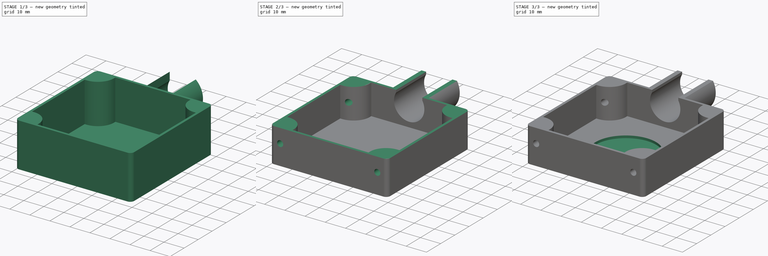
[diagram: build sequence overview — one tinted view per stage of 3, left to right]
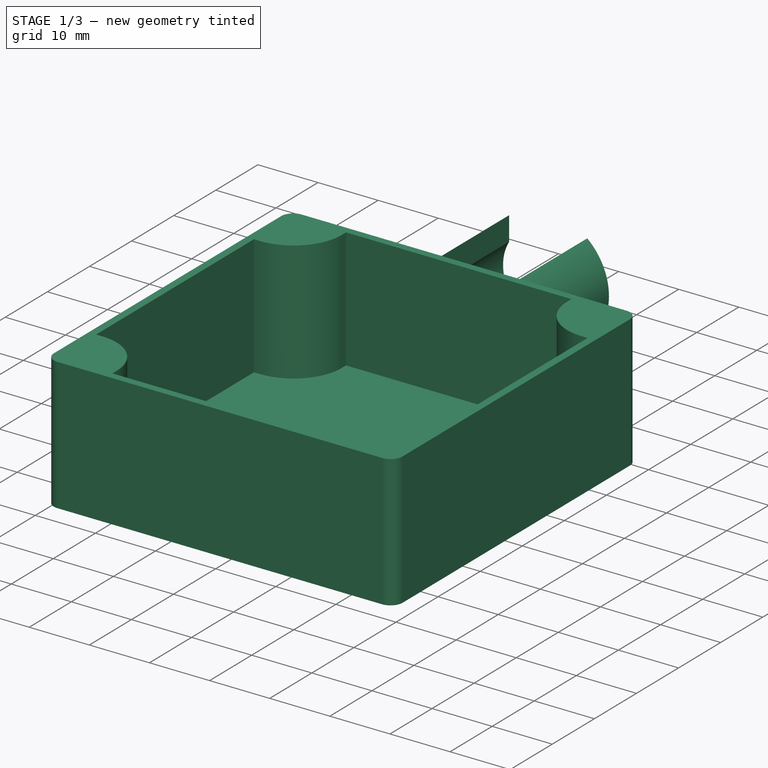
[diagram: stage 1 of 3 — iso view after this stage's code; geometry added in this stage tinted green]
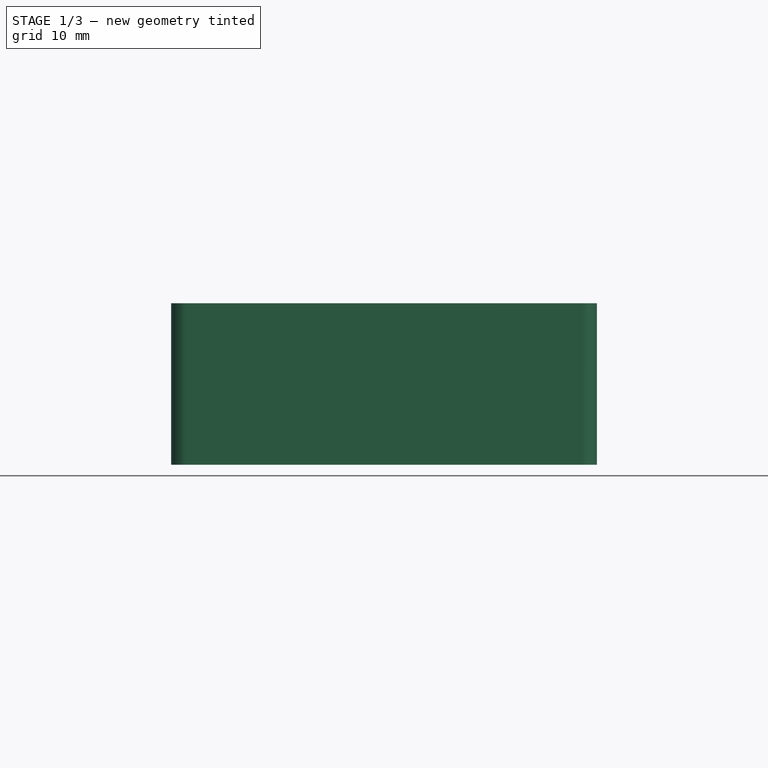
[diagram: stage 1 of 3 — front view after this stage's code; geometry added in this stage tinted green]
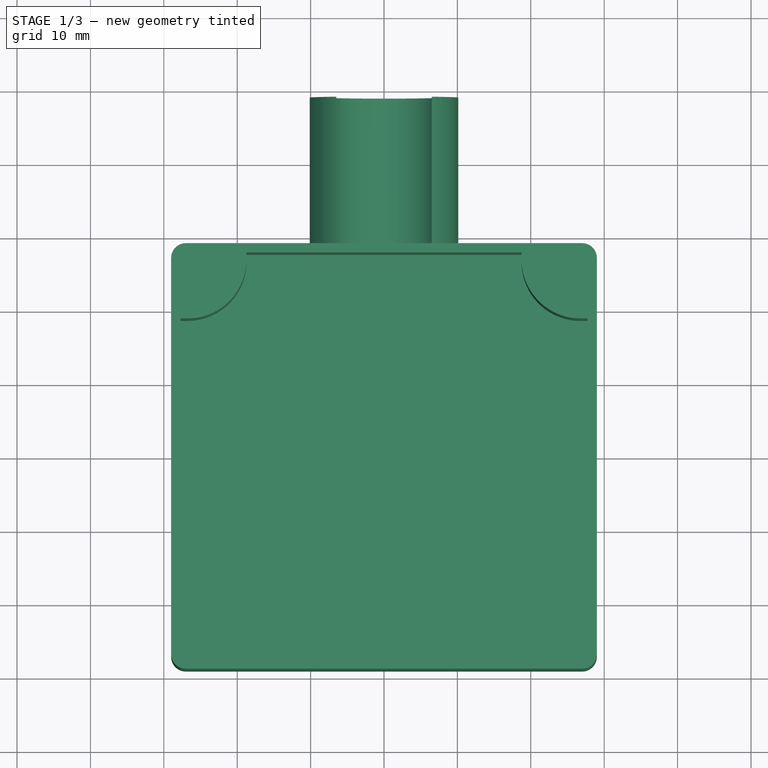
[diagram: stage 1 of 3 — top view after this stage's code; geometry added in this stage tinted green]
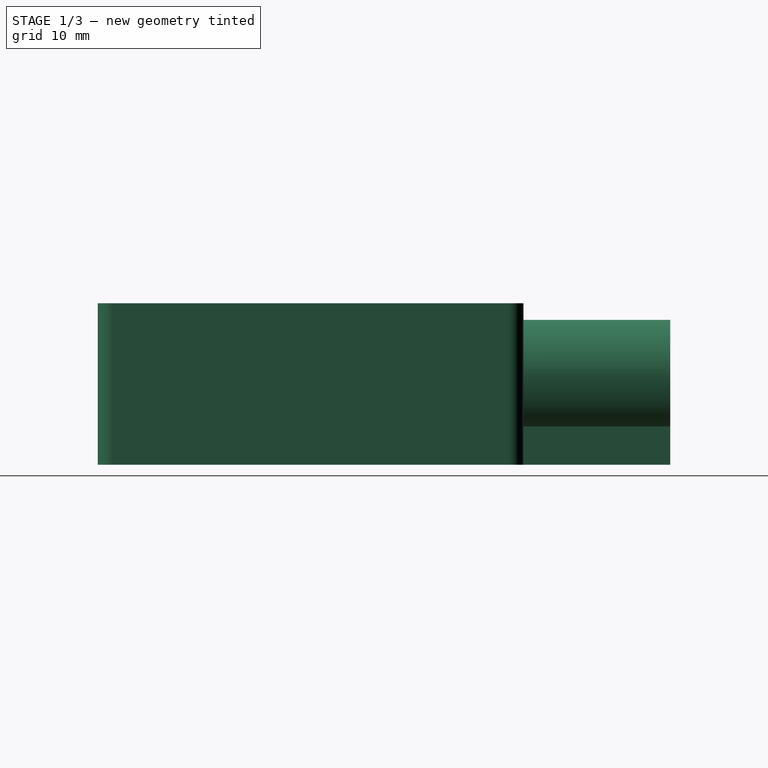
[diagram: stage 1 of 3 — right view after this stage's code; geometry added in this stage tinted green]
FCSTD DOCUMENT  (FreeCAD 0.19R23141 (Git))
Label: cnc_stepper_cap
License: All rights reserved
LicenseURL: http://en.wikipedia.org/wiki/All_rights_reserved
objects: Sketcher::SketchObject×7, PartDesign::Pocket×5, PartDesign::Pad×2, PartDesign::Chamfer×1, PartDesign::Body×1
note: 24 computed .brp shape members not serialized (recipe doc carries the construction recipe); baked Part::Feature solids carry a one-line shape summary decoded from their .brp

FEATURE [Sketcher::SketchObject] Sketch
  MapMode = 5
  Support = -> [XY_Plane]
  sketch-geometry (11):
    g0: LineSegment StartX=-27 StartY=29 StartZ=0 EndX=27 EndY=29 EndZ=0
    g1: LineSegment StartX=29 StartY=27 StartZ=0 EndX=29 EndY=-27 EndZ=0
    g2: LineSegment StartX=27 StartY=-29 StartZ=0 EndX=-27 EndY=-29 EndZ=0
    g3: LineSegment StartX=-29 StartY=-27 StartZ=0 EndX=-29 EndY=27 EndZ=0
    g4: ArcOfCircle CenterX=27 CenterY=27 CenterZ=0 NormalX=0 NormalY=0 NormalZ=1 AngleXU=0 Radius=2 StartAngle=-9e-16 EndAngle=1.5708
    g5: ArcOfCircle CenterX=27 CenterY=-27 CenterZ=0 NormalX=0 NormalY=0 NormalZ=1 AngleXU=0 Radius=2 StartAngle=4.71239 EndAngle=6.28319
    g6: ArcOfCircle CenterX=-27 CenterY=-27 CenterZ=0 NormalX=0 NormalY=0 NormalZ=1 AngleXU=0 Radius=2 StartAngle=3.14159 EndAngle=4.71239
    g7: ArcOfCircle CenterX=-27 CenterY=27 CenterZ=0 NormalX=0 NormalY=0 NormalZ=1 AngleXU=0 Radius=2 StartAngle=1.5708 EndAngle=3.14159
    g8: LineSegment [constr] StartX=-27 StartY=27 StartZ=0 EndX=0 EndY=0 EndZ=0
    g9: LineSegment [constr] StartX=0 StartY=0 StartZ=0 EndX=27 EndY=27 EndZ=0
    g10: LineSegment [constr] StartX=0 StartY=0 StartZ=0 EndX=-27 EndY=-27 EndZ=0
  constraints (26):
    c: Horizontal(g0)
    c: Horizontal(g2)
    c: Vertical(g1)
    c: Vertical(g3)
    c: Tangent(g0,g4) = 1.5708
    c: Tangent(g1,g4) = 1.5708
    c: Tangent(g1,g5) = 1.5708
    c: Tangent(g2,g5) = 1.5708
    c: Tangent(g2,g6) = 1.5708
    c: Tangent(g3,g6) = 1.5708
    c: Tangent(g3,g7) = 1.5708
    c: Tangent(g0,g7) = 1.5708
    c: Coincident(g8,g7)
    c: Coincident(g8,g-1)
    c: Coincident(g8,g9)
    c: Coincident(g9,g4)
    c: Coincident(g-1,g10)
    c: Coincident(g10,g6)
    c: Radius(g6) = 2
    c: Equal(g6,g5)
    c: Equal(g6,g4)
    c: Equal(g6,g7)
    c: Equal(g8,g10)
    c: Equal(g10,g9)
    c: Equal(g0,g3)
    c: DistanceX(g3,g1) = 58
FEATURE [PartDesign::Pad] Pad
  Direction = (1,1,1)
  Length = 22
  Length2 = 100
  Profile = -> Sketch
  Type = 0
FEATURE [Sketcher::SketchObject] Sketch001
  MapMode = 5
  Placement = pos=(0,0,22) rot=(0,0,1;0rad)
  Support = -> [Pad]
  sketch-geometry (23):
    g0: LineSegment [constr] StartX=-27.75 StartY=27.75 StartZ=0 EndX=27.75 EndY=27.75 EndZ=0
    g1: LineSegment [constr] StartX=27.75 StartY=27.75 StartZ=0 EndX=27.75 EndY=-27.75 EndZ=0
    g2: LineSegment [constr] StartX=27.75 StartY=-27.75 StartZ=0 EndX=-27.75 EndY=-27.75 EndZ=0
    g3: LineSegment [constr] StartX=-27.75 StartY=-27.75 StartZ=0 EndX=-27.75 EndY=27.75 EndZ=0
    g4: LineSegment [constr] StartX=-27.75 StartY=27.75 StartZ=0 EndX=0 EndY=0 EndZ=0
    g5: LineSegment [constr] StartX=0 StartY=0 StartZ=0 EndX=27.75 EndY=27.75 EndZ=0
    g6: LineSegment [constr] StartX=0 StartY=0 StartZ=0 EndX=-27.75 EndY=-27.75 EndZ=0
    g7: LineSegment StartX=-18.75 StartY=27.75 StartZ=0 EndX=18.75 EndY=27.75 EndZ=0
    g8: LineSegment StartX=18.75 StartY=27.75 StartZ=0 EndX=18.75 EndY=26.75 EndZ=0
    g9: LineSegment StartX=26.75 StartY=18.75 StartZ=0 EndX=27.75 EndY=18.75 EndZ=0
    g10: LineSegment StartX=27.75 StartY=18.75 StartZ=0 EndX=27.75 EndY=-18.75 EndZ=0
    g11: LineSegment StartX=27.75 StartY=-18.75 StartZ=0 EndX=26.75 EndY=-18.75 EndZ=0
    g12: LineSegment StartX=18.75 StartY=-26.75 StartZ=0 EndX=18.75 EndY=-27.75 EndZ=0
    g13: LineSegment StartX=18.75 StartY=-27.75 StartZ=0 EndX=-18.75 EndY=-27.75 EndZ=0
    g14: LineSegment StartX=-18.75 StartY=-27.75 StartZ=0 EndX=-18.75 EndY=-26.75 EndZ=0
    g15: LineSegment StartX=-26.75 StartY=-18.75 StartZ=0 EndX=-27.75 EndY=-18.75 EndZ=0
    g16: LineSegment StartX=-27.75 StartY=-18.75 StartZ=0 EndX=-27.75 EndY=18.75 EndZ=0
    g17: LineSegment StartX=-27.75 StartY=18.75 StartZ=0 EndX=-26.75 EndY=18.75 EndZ=0
    g18: LineSegment StartX=-18.75 StartY=26.75 StartZ=0 EndX=-18.75 EndY=27.75 EndZ=0
    g19: ArcOfCircle CenterX=-26.75 CenterY=26.75 CenterZ=0 NormalX=0 NormalY=0 NormalZ=1 AngleXU=0 Radius=8 StartAngle=4.71239 EndAngle=6.28319
    g20: ArcOfCircle CenterX=26.75 CenterY=26.75 CenterZ=0 NormalX=0 NormalY=0 NormalZ=1 AngleXU=0 Radius=8 StartAngle=3.14159 EndAngle=4.71239
    g21: ArcOfCircle CenterX=26.75 CenterY=-26.75 CenterZ=0 NormalX=0 NormalY=0 NormalZ=1 AngleXU=0 Radius=8 StartAngle=1.5708 EndAngle=3.14159
    g22: ArcOfCircle CenterX=-26.75 CenterY=-26.75 CenterZ=0 NormalX=0 NormalY=0 NormalZ=1 AngleXU=0 Radius=8 StartAngle=0 EndAngle=1.5708
  constraints (62):
    c: Coincident(g0,g1)
    c: Coincident(g1,g2)
    c: Coincident(g2,g3)
    c: Coincident(g3,g0)
    c: Horizontal(g0)
    c: Horizontal(g2)
    c: Vertical(g1)
    c: Vertical(g3)
    c: DistanceX(g0,g0) = 55.5
    c: Equal(g0,g3)
    c: Coincident(g0,g4)
    c: Coincident(g4,g-1)
    c: Coincident(g4,g5)
    c: Coincident(g5,g0)
    c: Coincident(g-1,g6)
    c: Coincident(g6,g2)
    c: Equal(g6,g4)
    c: Equal(g4,g5)
    c: PointOnObject(g7,g0)
    c: Coincident(g7,g8)
    c: Vertical(g8)
    c: PointOnObject(g9,g1)
    c: Horizontal(g9)
    c: Coincident(g9,g10)
    c: Coincident(g10,g11)
    c: Horizontal(g11)
    c: Vertical(g12)
    c: Coincident(g12,g13)
    c: PointOnObject(g13,g2)
    c: Coincident(g13,g14)
    c: Vertical(g14)
    c: PointOnObject(g15,g3)
    c: Horizontal(g15)
    c: Coincident(g15,g16)
    c: Coincident(g16,g17)
    c: Horizontal(g17)
    c: Coincident(g18,g7)
    c: Vertical(g18)
    c: PointOnObject(g7,g0)
    c: PointOnObject(g10,g1)
    c: PointOnObject(g12,g2)
    c: PointOnObject(g16,g3)
    c: Tangent(g17,g19) = -1.5708
    c: Tangent(g18,g19) = -1.5708
    c: Tangent(g8,g20) = -1.5708
    c: Tangent(g9,g20) = -1.5708
    c: Tangent(g11,g21) = -1.5708
    c: Tangent(g12,g21) = -1.5708
    c: Tangent(g14,g22) = -1.5708
    c: Tangent(g15,g22) = -1.5708
    c: Equal(g19,g20)
    c: Equal(g20,g21)
    c: Equal(g21,g22)
    c: Equal(g15,g17)
    c: Equal(g17,g18)
    c: Equal(g18,g8)
    c: Equal(g8,g9)
    c: Equal(g9,g11)
    c: Equal(g11,g12)
    c: Equal(g12,g14)
    c: DistanceY(g18,g18) = 1
    c: Radius(g19) = 8
FEATURE [PartDesign::Pocket] Pocket
  BaseFeature = -> Pad
  Length = 20
  Length2 = 100
  Profile = -> Sketch001
  Type = 0
FEATURE [Sketcher::SketchObject] Sketch002
  MapMode = 5
  Placement = pos=(0,29,0) rot=(0,0.707107,0.707107;3.14159rad)
  Support = -> [Pocket]
  sketch-geometry (9):
    g0: ArcOfCircle CenterX=0 CenterY=12 CenterZ=0 NormalX=0 NormalY=0 NormalZ=1 AngleXU=0 Radius=10.1086 StartAngle=2.26923 EndAngle=3.87642
    g1: LineSegment StartX=-7.5 StartY=5.22259 StartZ=0 EndX=-7.5 EndY=0 EndZ=0
    g2: LineSegment StartX=-7.5 StartY=0 StartZ=0 EndX=7.5 EndY=0 EndZ=0
    g3: LineSegment StartX=7.5 StartY=0 StartZ=0 EndX=7.5 EndY=5.22259 EndZ=0
    g4: ArcOfCircle CenterX=0 CenterY=12 CenterZ=0 NormalX=0 NormalY=0 NormalZ=1 AngleXU=0 Radius=10.1086 StartAngle=5.54835 EndAngle=7.15555
    g5: ArcOfCircle CenterX=0 CenterY=12 CenterZ=0 NormalX=0 NormalY=0 NormalZ=1 AngleXU=0 Radius=7.5 StartAngle=2.61928 EndAngle=6.8055
    g6: LineSegment StartX=-6.5 StartY=15.7417 StartZ=0 EndX=-6.5 EndY=19.7417 EndZ=0
    g7: LineSegment StartX=6.5 StartY=15.7417 StartZ=0 EndX=6.5 EndY=19.7417 EndZ=0
    g8: LineSegment [constr] StartX=-6.5 StartY=15.7417 StartZ=0 EndX=6.5 EndY=15.7417 EndZ=0
  constraints (27):
    c: PointOnObject(g0,g-2)
    c: Coincident(g1,g0)
    c: Vertical(g1)
    c: Coincident(g2,g1)
    c: Coincident(g3,g2)
    c: Vertical(g3)
    c: PointOnObject(g2,g-1)
    c: Coincident(g4,g0)
    c: Coincident(g4,g3)
    c: Coincident(g5,g0)
    c: Diameter(g5) = 15
    c: Coincident(g6,g5)
    c: Coincident(g6,g0)
    c: Coincident(g7,g5)
    c: Vertical(g6)
    c: Vertical(g7)
    c: Equal(g3,g1)
    c: PointOnObject(g1,g-1)
    c: Coincident(g7,g4)
    c: Coincident(g8,g5)
    c: Coincident(g8,g5)
    c: Horizontal(g8)
    c: Equal(g6,g7)
    c: DistanceX(g5,g5) = 13
    c: DistanceY(g-1,g0) = 12
    c: DistanceX(g2,g2) = 15
    c: DistanceY(g6,g6) = 4
FEATURE [PartDesign::Pad] Pad001
  BaseFeature = -> Pocket
  Direction = (1,1,1)
  Length = 20
  Length2 = 100
  Profile = -> Sketch002
  Type = 0
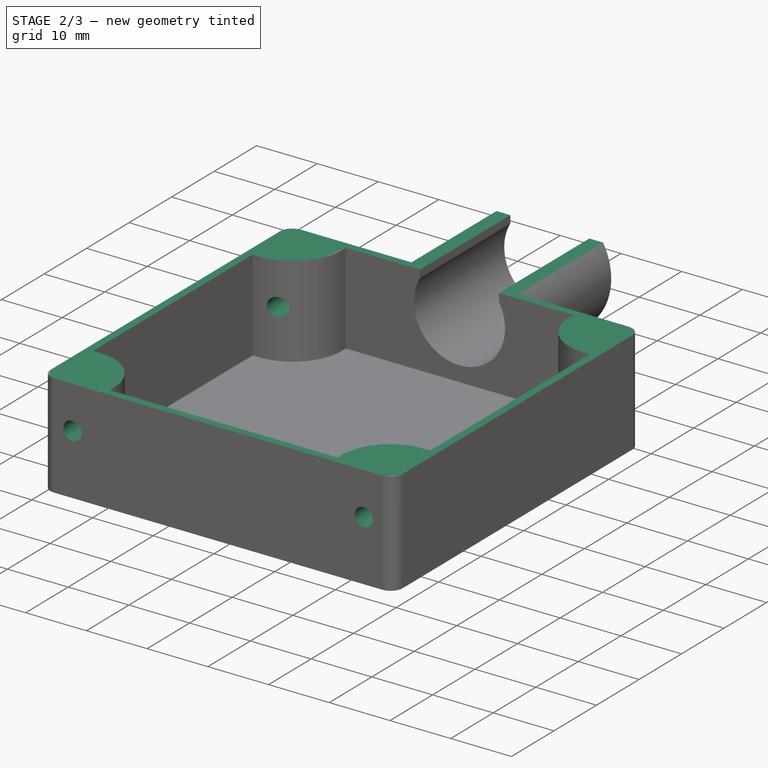
[diagram: stage 2 of 3 — iso view after this stage's code; geometry added in this stage tinted green]
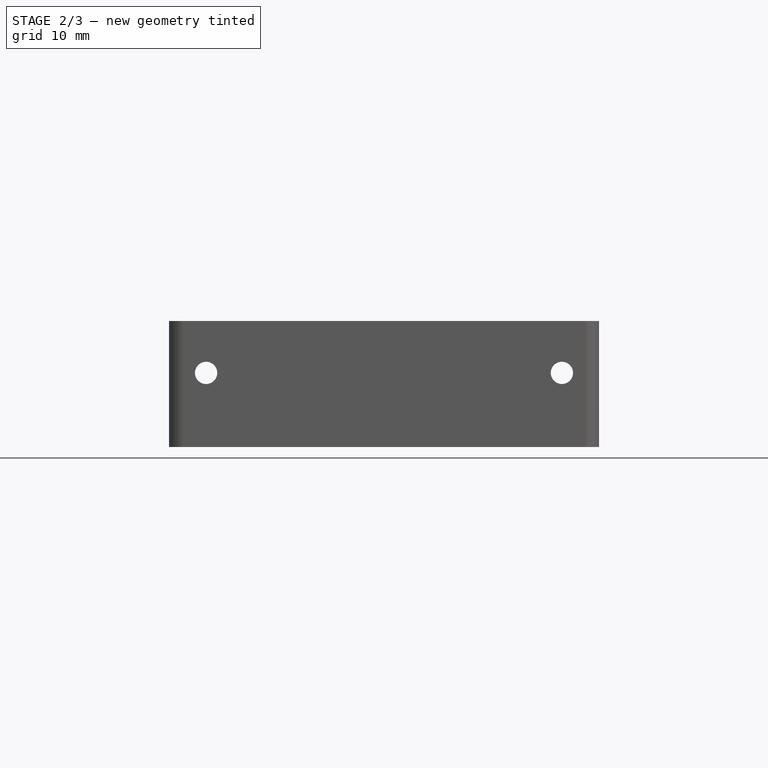
[diagram: stage 2 of 3 — front view after this stage's code; geometry added in this stage tinted green]
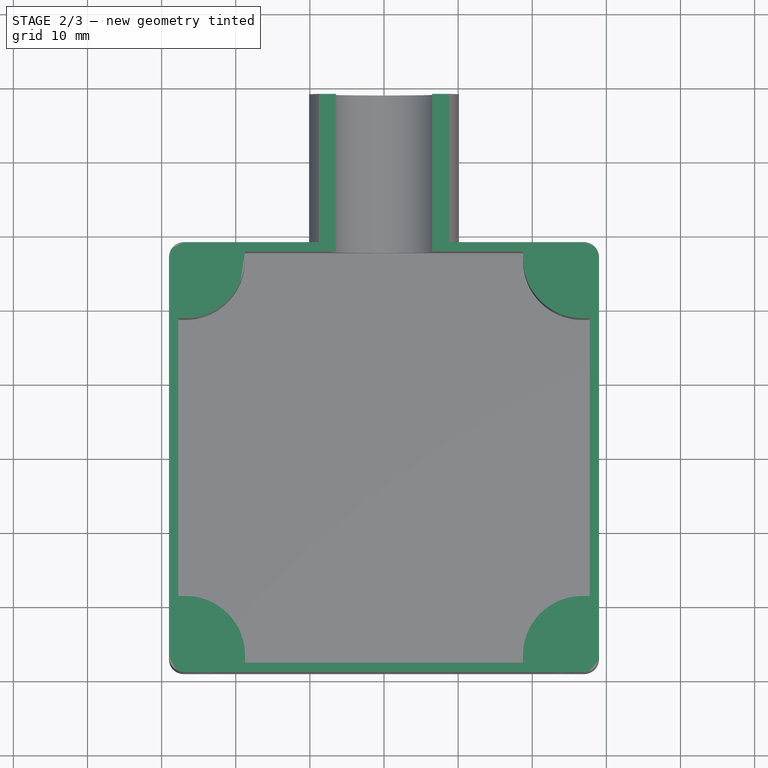
[diagram: stage 2 of 3 — top view after this stage's code; geometry added in this stage tinted green]
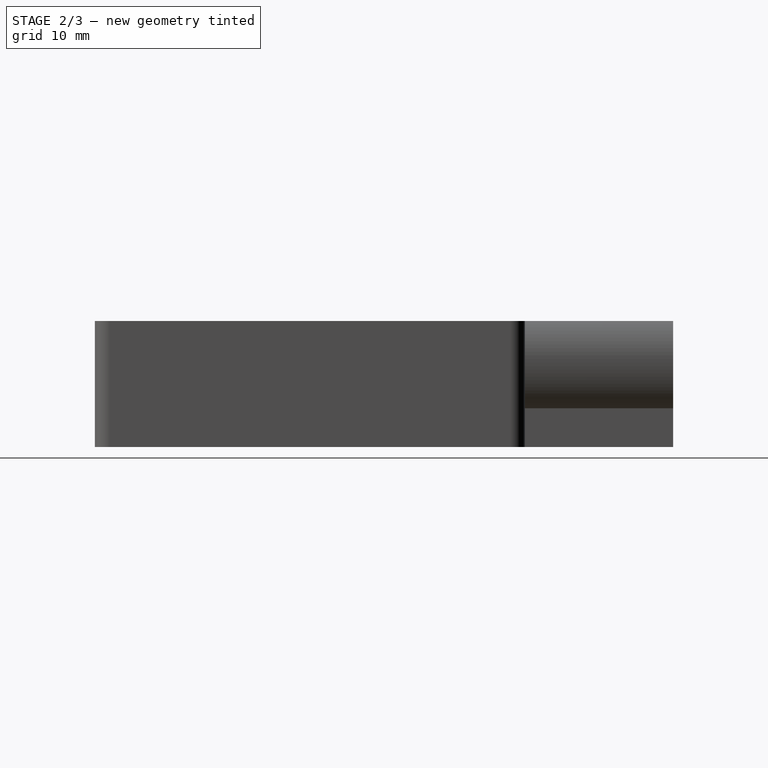
[diagram: stage 2 of 3 — right view after this stage's code; geometry added in this stage tinted green]
FEATURE [Sketcher::SketchObject] Sketch003
  MapMode = 5
  Placement = pos=(0,29,0) rot=(0,0.707107,0.707107;3.14159rad)
  sketch-geometry (4):
    g0: ArcOfCircle CenterX=0 CenterY=12 CenterZ=0 NormalX=0 NormalY=0 NormalZ=1 AngleXU=0 Radius=7.5 StartAngle=2.61928 EndAngle=6.8055
    g1: LineSegment StartX=-6.5 StartY=15.7417 StartZ=0 EndX=-6.5 EndY=25.7417 EndZ=0
    g2: LineSegment StartX=-6.5 StartY=25.7417 StartZ=0 EndX=6.5 EndY=25.7417 EndZ=0
    g3: LineSegment StartX=6.5 StartY=25.7417 StartZ=0 EndX=6.5 EndY=15.7417 EndZ=0
  constraints (8):
    c: Coincident(g1,g0)
    c: Vertical(g1)
    c: Coincident(g2,g1)
    c: Horizontal(g2)
    c: Coincident(g3,g2)
    c: Coincident(g3,g0)
    c: Vertical(g3)
    c: DistanceY(g3,g3) = 10
FEATURE [PartDesign::Pocket] Pocket001
  BaseFeature = -> Pad001
  Length = 5
  Length2 = 100
  Profile = -> Sketch003
  Refine = true
  Type = 0
FEATURE [Sketcher::SketchObject] Sketch004
  MapMode = 5
  Placement = pos=(0,-29,0) rot=(1,0,0;1.5708rad)
  sketch-geometry (10):
    g0: Circle CenterX=-24 CenterY=10 CenterZ=0 NormalX=0 NormalY=0 NormalZ=1 AngleXU=0 Radius=1.5
    g1: Circle CenterX=24 CenterY=10 CenterZ=0 NormalX=0 NormalY=0 NormalZ=1 AngleXU=0 Radius=1.5
    g2: LineSegment [constr] StartX=-24 StartY=10 StartZ=0 EndX=0 EndY=10 EndZ=0
    g3: LineSegment [constr] StartX=0 StartY=10 StartZ=0 EndX=24 EndY=10 EndZ=0
    g4: LineSegment [constr] StartX=0 StartY=0 StartZ=0 EndX=-40 EndY=17 EndZ=0
    g5: LineSegment [constr] StartX=0 StartY=0 StartZ=0 EndX=40 EndY=17 EndZ=0
    g6: LineSegment StartX=-40 StartY=17 StartZ=0 EndX=40 EndY=17 EndZ=0
    g7: LineSegment StartX=40 StartY=17 StartZ=0 EndX=40 EndY=27 EndZ=0
    g8: LineSegment StartX=40 StartY=27 StartZ=0 EndX=-40 EndY=27 EndZ=0
    g9: LineSegment StartX=-40 StartY=27 StartZ=0 EndX=-40 EndY=17 EndZ=0
  constraints (27):
    c: Coincident(g2,g0)
    c: Horizontal(g2)
    c: Coincident(g3,g2)
    c: Coincident(g3,g1)
    c: Horizontal(g3)
    c: PointOnObject(g2,g-2)
    c: Equal(g3,g2)
    c: Diameter(g0) = 3
    c: Equal(g0,g1)
    c: DistanceX(g2,g2) = 24
    c: DistanceY(g-1,g2) = 10
    c: Coincident(g-1,g4)
    c: Coincident(g-1,g5)
    c: Coincident(g6,g7)
    c: Coincident(g7,g8)
    c: Coincident(g8,g9)
    c: Coincident(g9,g6)
    c: Horizontal(g6)
    c: Horizontal(g8)
    c: Vertical(g7)
    c: Vertical(g9)
    c: Coincident(g6,g4)
    c: Coincident(g6,g5)
    c: Equal(g5,g4)
    c: DistanceY(g9,g9) = 10
    c: DistanceX(g6,g6) = 80
    c: DistanceY(g-1,g6) = 17
FEATURE [PartDesign::Pocket] Pocket002
  BaseFeature = -> Pocket001
  Length = 5
  Length2 = 100
  Profile = -> Sketch004
  Type = 1
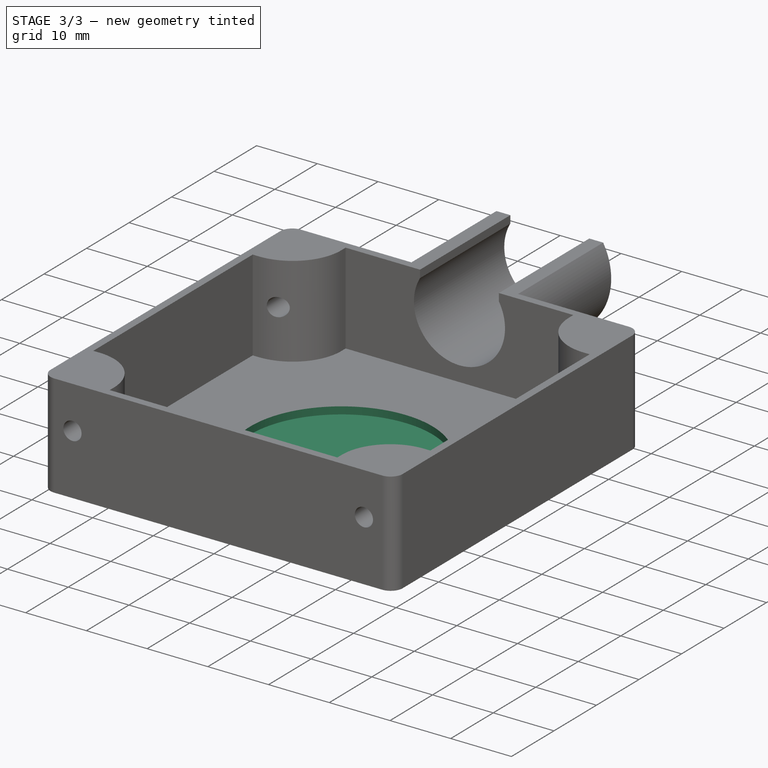
[diagram: stage 3 of 3 — iso view after this stage's code; geometry added in this stage tinted green]
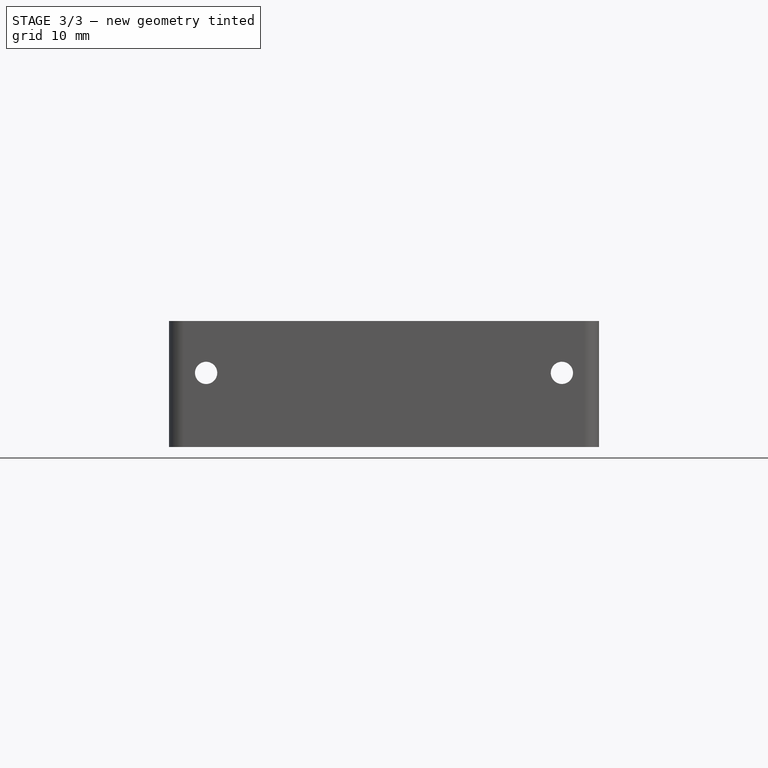
[diagram: stage 3 of 3 — front view after this stage's code; geometry added in this stage tinted green]
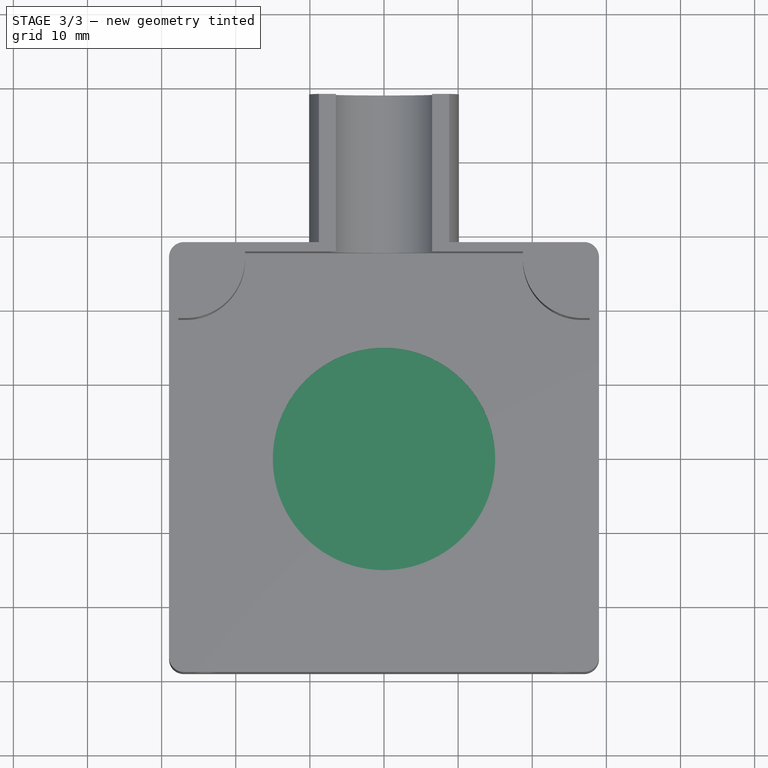
[diagram: stage 3 of 3 — top view after this stage's code; geometry added in this stage tinted green]
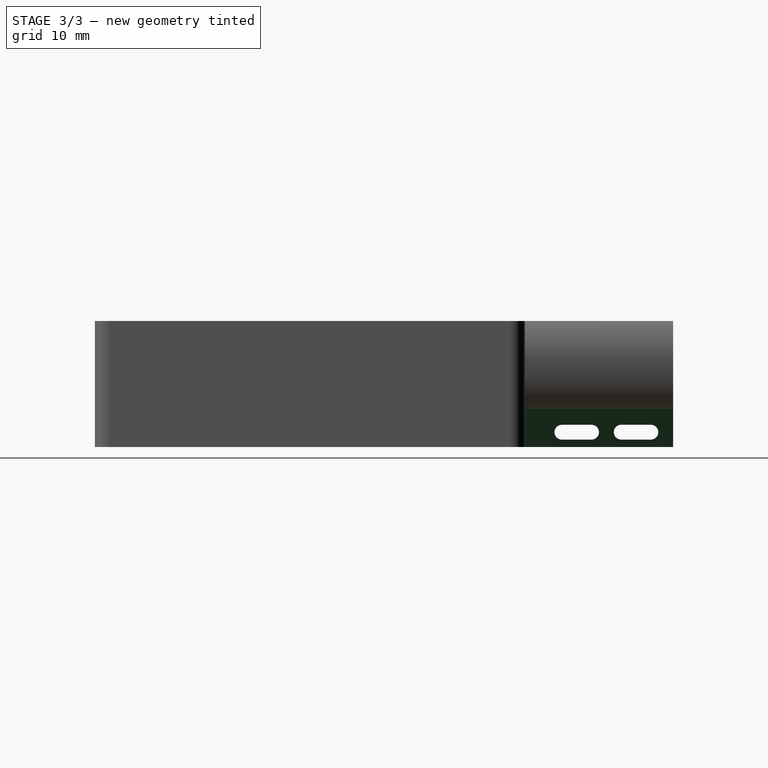
[diagram: stage 3 of 3 — right view after this stage's code; geometry added in this stage tinted green]
FEATURE [PartDesign::Chamfer] Chamfer
  Angle = 45
  Base = -> Pocket002 [Edge9,Edge7]
  BaseFeature = -> Pocket002
  ChamferType = 0
  FlipDirection = false
  Size = 5.2
  Size2 = 1
  SupportTransform = false
FEATURE [Sketcher::SketchObject] Sketch005
  MapMode = 5
  Placement = pos=(0,0,2) rot=(0,0,1;0rad)
  Support = -> [Chamfer]
  sketch-geometry (1):
    g0: Circle CenterX=0 CenterY=0 CenterZ=0 NormalX=0 NormalY=0 NormalZ=1 AngleXU=0 Radius=15
  constraints (2):
    c: Coincident(g0,g-1)
    c: Diameter(g0) = 30
FEATURE [PartDesign::Pocket] Pocket003
  BaseFeature = -> Chamfer
  Length = 1.2
  Length2 = 100
  Profile = -> Sketch005
  Type = 0
FEATURE [Sketcher::SketchObject] Sketch006
  MapMode = 5
  Placement = pos=(0,0,0) rot=(0.57735,0.57735,0.57735;2.0944rad)
  Support = -> [YZ_Plane]
  sketch-geometry (11):
    g0: ArcOfCircle CenterX=34 CenterY=2 CenterZ=0 NormalX=0 NormalY=0 NormalZ=1 AngleXU=0 Radius=1 StartAngle=1.5708 EndAngle=4.71239
    g1: ArcOfCircle CenterX=38 CenterY=2 CenterZ=0 NormalX=0 NormalY=0 NormalZ=1 AngleXU=0 Radius=1 StartAngle=4.71239 EndAngle=7.85398
    g2: LineSegment StartX=34 StartY=1 StartZ=0 EndX=38 EndY=1 EndZ=0
    g3: LineSegment StartX=34 StartY=3 StartZ=0 EndX=38 EndY=3 EndZ=0
    g4: ArcOfCircle CenterX=42 CenterY=2 CenterZ=0 NormalX=0 NormalY=0 NormalZ=1 AngleXU=0 Radius=1 StartAngle=1.5708 EndAngle=4.71239
    g5: ArcOfCircle CenterX=46 CenterY=2 CenterZ=0 NormalX=0 NormalY=0 NormalZ=1 AngleXU=0 Radius=1 StartAngle=4.71239 EndAngle=7.85398
    g6: LineSegment StartX=42 StartY=1 StartZ=0 EndX=46 EndY=1 EndZ=0
    g7: LineSegment StartX=42 StartY=3 StartZ=0 EndX=46 EndY=3 EndZ=0
    g8: LineSegment [constr] StartX=38 StartY=2 StartZ=0 EndX=42 EndY=2 EndZ=0
    g9: LineSegment [constr] StartX=38 StartY=2 StartZ=0 EndX=40 EndY=0 EndZ=0
    g10: LineSegment [constr] StartX=40 StartY=0 StartZ=0 EndX=42 EndY=2 EndZ=0
  constraints (27):
    c: Tangent(g0,g3)
    c: Tangent(g0,g2)
    c: Tangent(g2,g1)
    c: Tangent(g3,g1)
    c: Horizontal(g2)
    c: Equal(g0,g1)
    c: Tangent(g4,g7)
    c: Tangent(g4,g6)
    c: Tangent(g6,g5)
    c: Tangent(g7,g5)
    c: Horizontal(g6)
    c: Equal(g4,g5)
    c: Equal(g3,g7)
    c: Equal(g4,g0)
    c: Coincident(g8,g1)
    c: Coincident(g8,g4)
    c: Horizontal(g8)
    c: DistanceX(g0,g1) = 4
    c: DistanceY(g0,g0) = 2
    c: DistanceX(g1,g4) = 4
    c: Coincident(g9,g1)
    c: PointOnObject(g9,g-1)
    c: Coincident(g10,g9)
    c: Coincident(g10,g4)
    c: Equal(g10,g9)
    c: DistanceX(g-1,g9) = 40
    c: DistanceY(g-1,g4) = 2
FEATURE [PartDesign::Pocket] Pocket004
  BaseFeature = -> Pocket003
  Length = 5
  Length2 = 100
  Midplane = true
  Profile = -> Sketch006
  Type = 1
FEATURE [PartDesign::Body] Body
  Group = -> [Sketch,Pad,Sketch001,Pocket,Sketch002,Pad001,Sketch003,Pocket001,Sketch004,Pocket002,Chamfer,Sketch005,Pocket003,Sketch006,Pocket004]
  Origin = -> Origin
  Tip = -> Pocket004
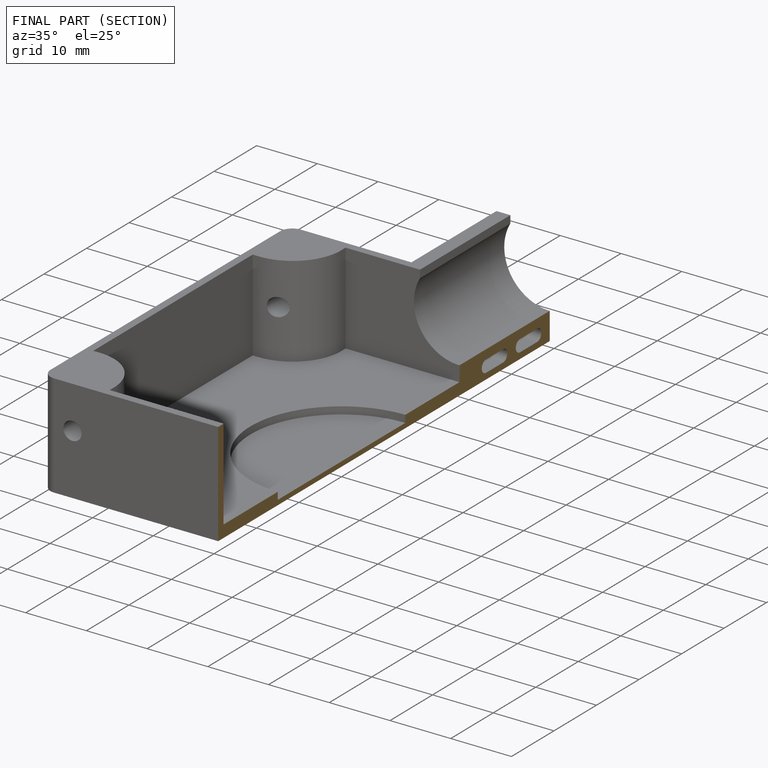
[diagram: finished part — half-section view (interior)]
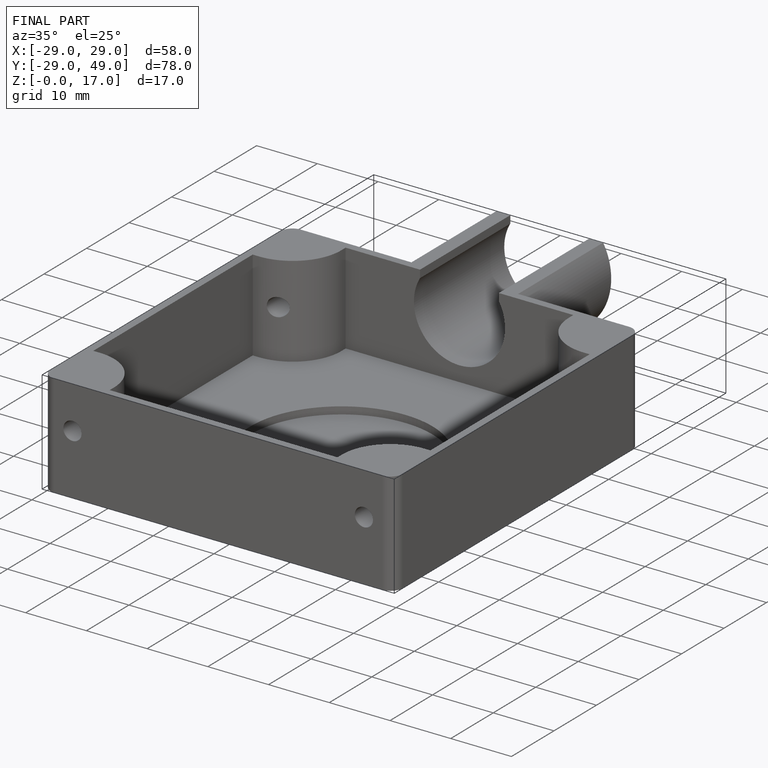
[diagram: finished part — iso view with bounding-box wireframe]
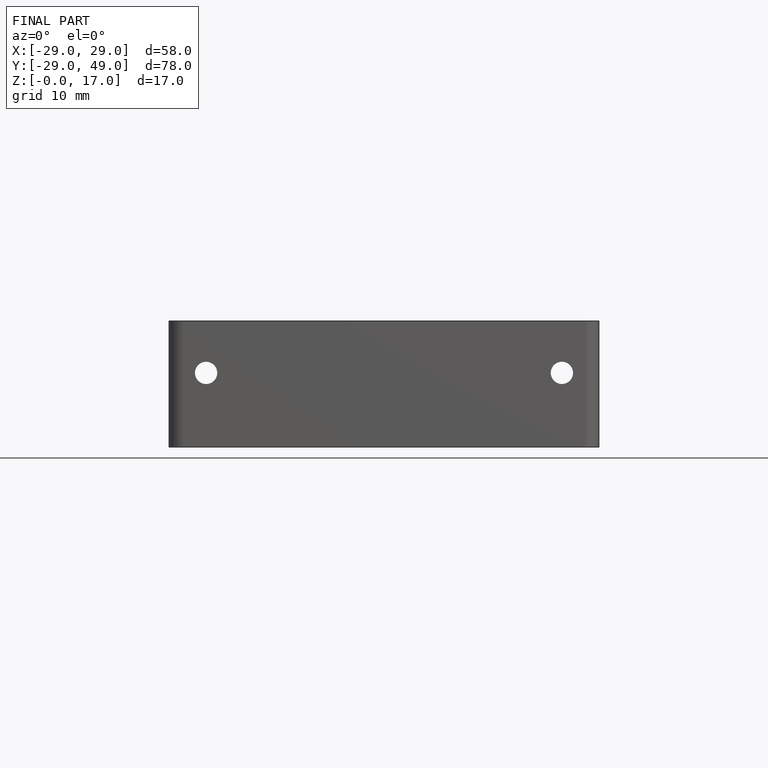
[diagram: finished part — front view with bounding-box wireframe]
